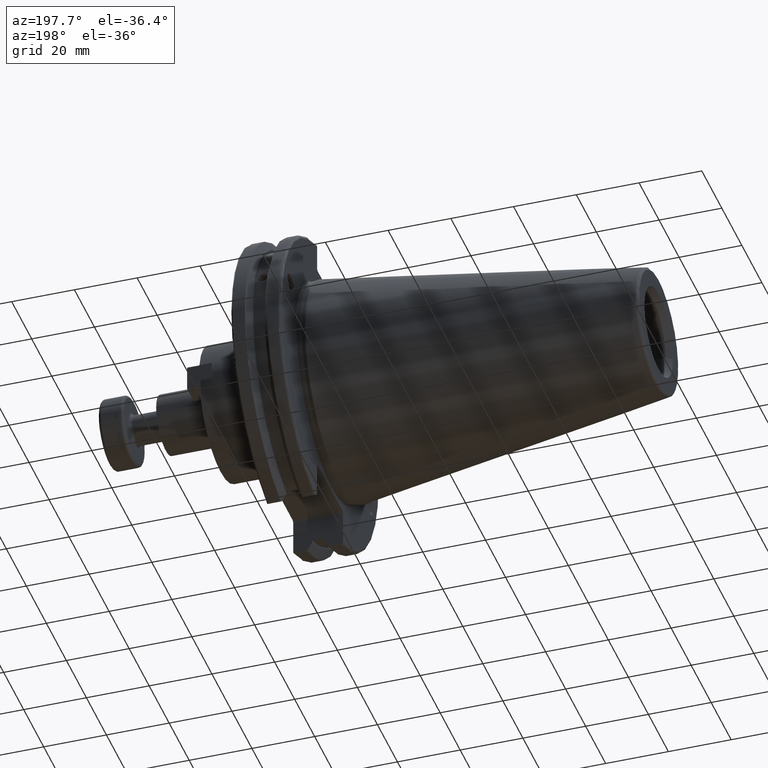
[diagram: clean part render]
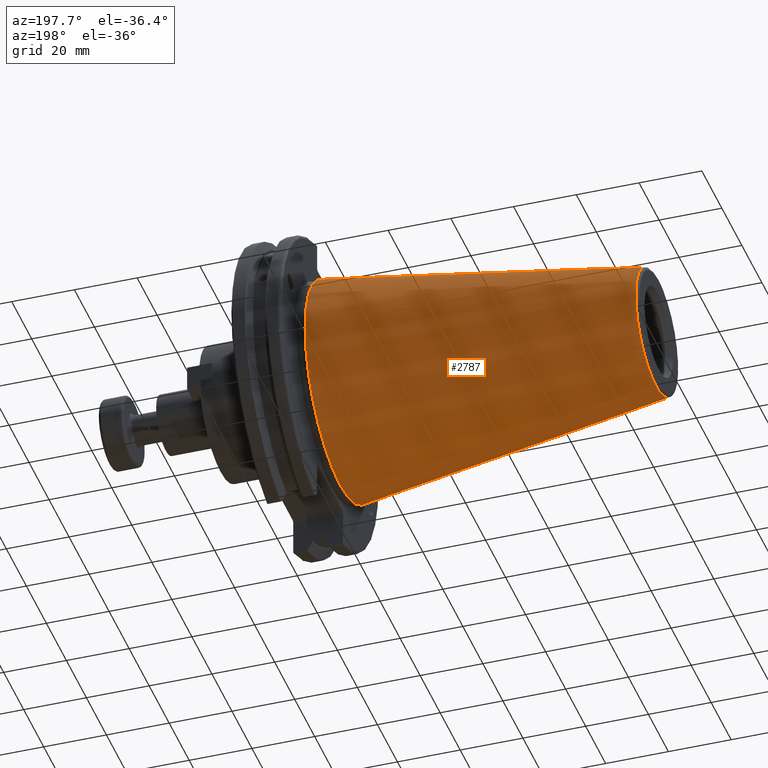
[diagram: same view with one face highlighted and labeled with its STEP entity id]
A machine part, auxiliary view. The second image highlights one B-rep face of the part: STEP entity #2787.
In plain terms, the highlighted conical surface has half-angle 8.297 deg.
Its self-contained STEP definition (entity closure, byte-faithful):
#563=CONICAL_SURFACE('',#3155,27.5166666666666,0.14481249823894);
#661=CIRCLE('',#3149,20.233121911427);
#662=CIRCLE('',#3150,20.233121911427);
#666=CIRCLE('',#3156,34.925);
#799=FACE_OUTER_BOUND('',#958,.T.);
#958=EDGE_LOOP('',(#2307,#2308,#2309,#2310,#2311));
#1138=LINE('',#5014,#1306);
#1306=VECTOR('',#3720,27.5166666666666);
#1530=VERTEX_POINT('',#5001);
#1531=VERTEX_POINT('',#5002);
#1534=VERTEX_POINT('',#5012);
#1816=EDGE_CURVE('',#1530,#1531,#661,.T.);
#1817=EDGE_CURVE('',#1531,#1530,#662,.T.);
#1821=EDGE_CURVE('',#1534,#1534,#666,.T.);
#1822=EDGE_CURVE('',#1534,#1531,#1138,.T.);
#2307=ORIENTED_EDGE('',*,*,#1821,.F.);
#2308=ORIENTED_EDGE('',*,*,#1822,.T.);
#2309=ORIENTED_EDGE('',*,*,#1816,.F.);
#2310=ORIENTED_EDGE('',*,*,#1817,.F.);
#2311=ORIENTED_EDGE('',*,*,#1822,.F.);
#2787=ADVANCED_FACE('',(#799),#563,.T.);
#3149=AXIS2_PLACEMENT_3D('',#5003,#3704,#3705);
#3150=AXIS2_PLACEMENT_3D('',#5004,#3706,#3707);
#3155=AXIS2_PLACEMENT_3D('',#5011,#3716,#3717);
#3156=AXIS2_PLACEMENT_3D('',#5013,#3718,#3719);
#3704=DIRECTION('center_axis',(-1.,0.,0.));
#3705=DIRECTION('ref_axis',(0.,-1.,3.06161699786838E-17));
#3706=DIRECTION('center_axis',(-1.,0.,0.));
#3707=DIRECTION('ref_axis',(0.,-1.,3.06161699786838E-17));
#3716=DIRECTION('center_axis',(1.,0.,0.));
#3717=DIRECTION('ref_axis',(0.,1.,0.));
#3718=DIRECTION('center_axis',(1.,0.,0.));
#3719=DIRECTION('ref_axis',(0.,0.,-1.));
#3720=DIRECTION('',(-0.989532981063281,0.144306893071729,1.76724974695192E-17));
#5001=CARTESIAN_POINT('',(-100.744306893072,-2.47784279855872E-15,20.233121911427));
#5002=CARTESIAN_POINT('',(-100.744306893072,-20.233121911427,-2.47784279855872E-15));
#5003=CARTESIAN_POINT('Origin',(-100.744306893072,0.,-3.09730349819841E-15));
#5004=CARTESIAN_POINT('Origin',(-100.744306893072,0.,-3.09730349819841E-15));
#5011=CARTESIAN_POINT('Origin',(-50.8,0.,0.));
#5012=CARTESIAN_POINT('',(-8.88178419700125E-15,-34.925,-4.27707894602213E-15));
#5013=CARTESIAN_POINT('Origin',(0.,0.,0.));
#5014=CARTESIAN_POINT('',(-50.8,-27.5166666666666,-3.3698197756538E-15));